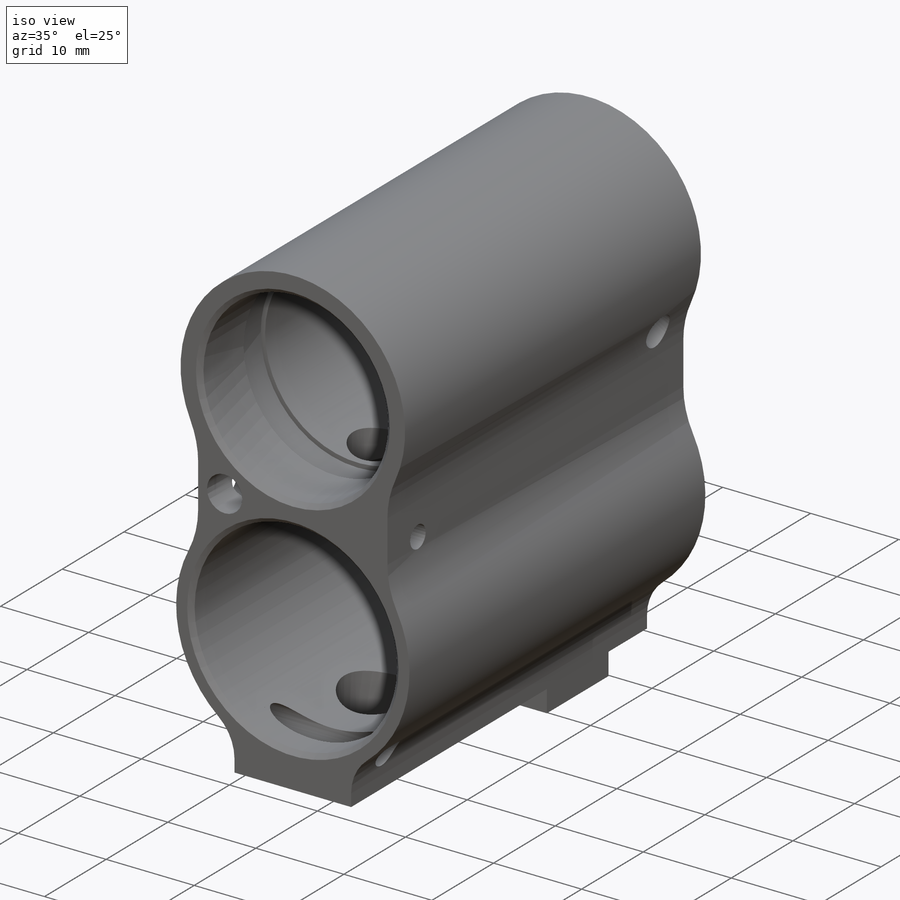
[diagram: iso view]
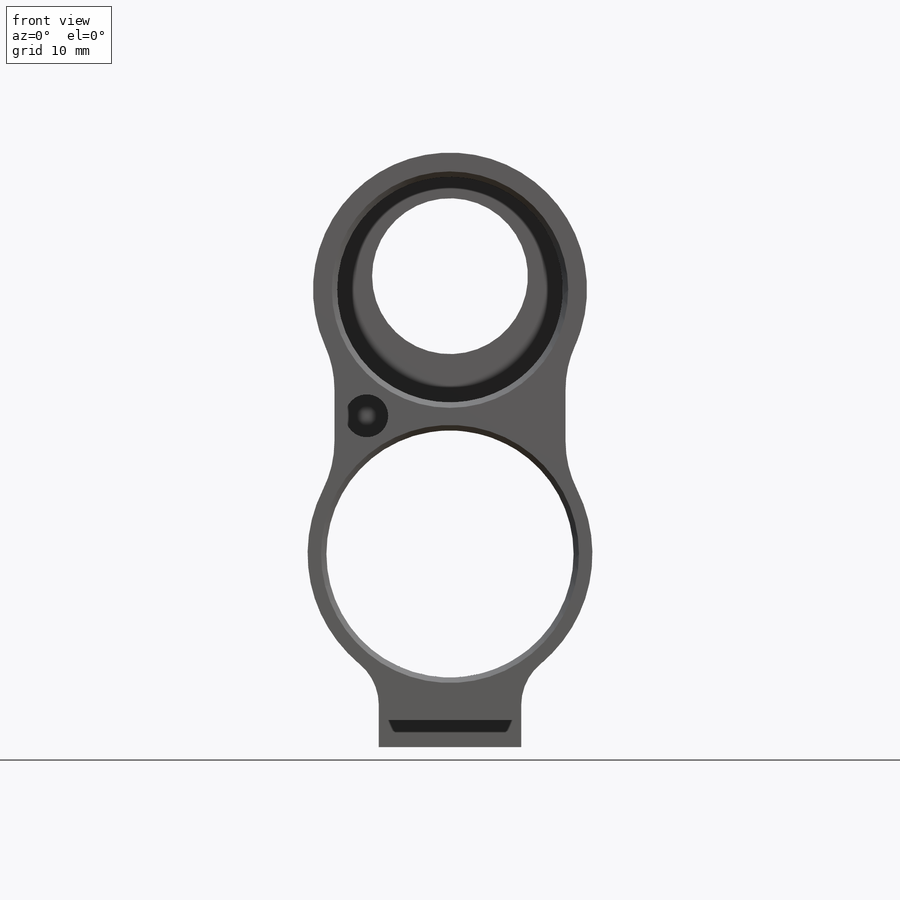
[diagram: front view]
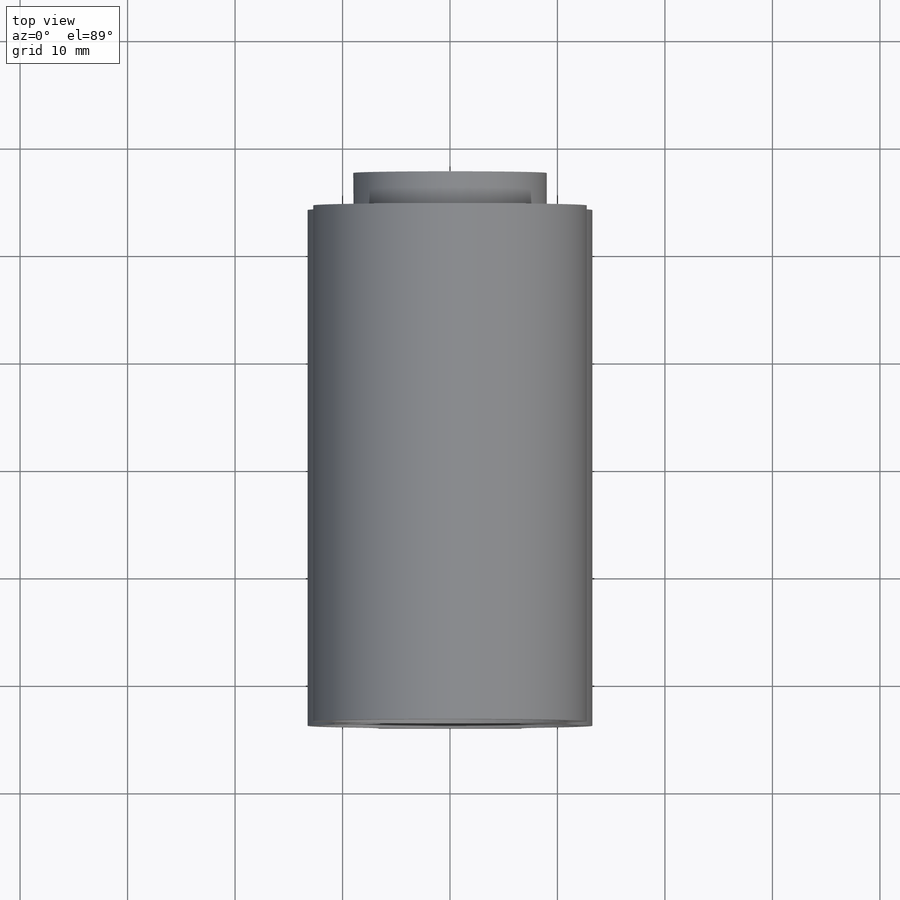
[diagram: top view]
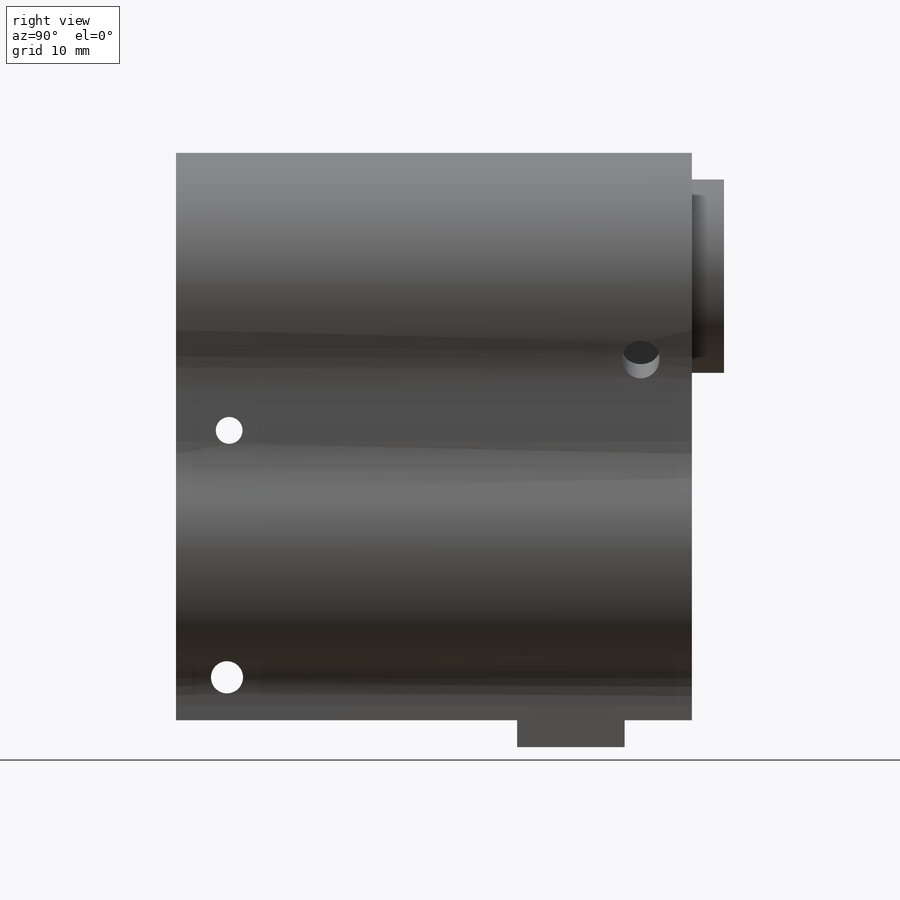
[diagram: right view]
SOLIDWORKS PART (.sldprt)
format: sldprt  version: not decoded by parser v0  size: 574,976 bytes
history: native  units: mm
features: sketch x12, cut_extrude x6, extrude x3, fillet x2, material x1, cut_revolve x1, plane x1, hole x1, chamfer x1 (+16 scaffold rows collapsed)
feature tree (44):
  scaffold x16  (default folders/planes/origin — collapsed)
  material  "Material <not specified>"
  sketch  "Sketch1"  dims[D1=25.5mm D2=26.5mm D5=23.0mm D3=52.82mm D4=13.25mm D6=4.0mm D7=21.5mm D8=10.75mm]
  extrude  "Body"  Depth=48mm
  sketch  "Sketch2"  dims[D1=10.0mm D2=6.25mm]
  extrude  "Boss"  Depth=2.5mm
  sketch  "Sketch3"  dims[D1=4.25mm]
  cut_extrude  "Base_Thread"  [1 undecoded]
  sketch  "Sketch5"  dims[D1=46.25mm D2=10.5mm D3=7.0mm D4=10.5mm D5=0.5mm]
  cut_revolve  "Top_Bore"  Angle=360deg
  sketch  "Sketch6"  dims[D1=14.5mm D2=4.25mm]
  cut_extrude  "Top_Rear_Bore"  [1 undecoded]
  sketch  "Sketch7"  dims[D1=18.0mm]
  extrude  "Rear_Boss"  Depth=3mm
  sketch  "Sketch8"  dims[D1=4.0mm D2=1.0mm D3=1.5mm D4=2.0mm]
  cut_extrude  "Front_Drill"  Depth=17mm
  fillet  "Center_End_Mill_Radius"  Radius=10mm
  fillet  "Bottom_End_Mill_Radius"  Radius=5mm
  sketch  "Sketch9"  dims[D1=2.5mm D3=3.0mm D2=3.7mm D4=3.25mm]
  cut_extrude  "Side_Pin_Holes"  [1 undecoded]
  plane  "Plane1"  Offset=4.75mm
  sketch  "Sketch11"  dims[c1.D1=~7.695448mm c2.D1=30.0deg c2.D2=1.75mm]
  hole  "Side_Angled_Pin_Hole"  [1 undecoded]
  sketch  "Sketch12"  dims[D1=360.0deg]
  chamfer  "Bore_End_Chamfers"  Distance=0.5mm Angle=45deg
  sketch  "Sketch13"  dims[D1=9.0mm D2=10.33mm]
  cut_extrude  "Gas_Hole_Bottom"  [1 undecoded]
  sketch  "Sketch14"  dims[D1=1.0mm]
  cut_extrude  "Gas_Hole_Top"  [1 undecoded]
decode coverage: 20 of 26 modeling features carry decoded parameters
note: ~ marks probable driven/reference dimensions
note: 6 parameter values undecoded
summary: no parameter record found for 6 features
note: suppression state not decoded; provenance and decode notes live in map.json
